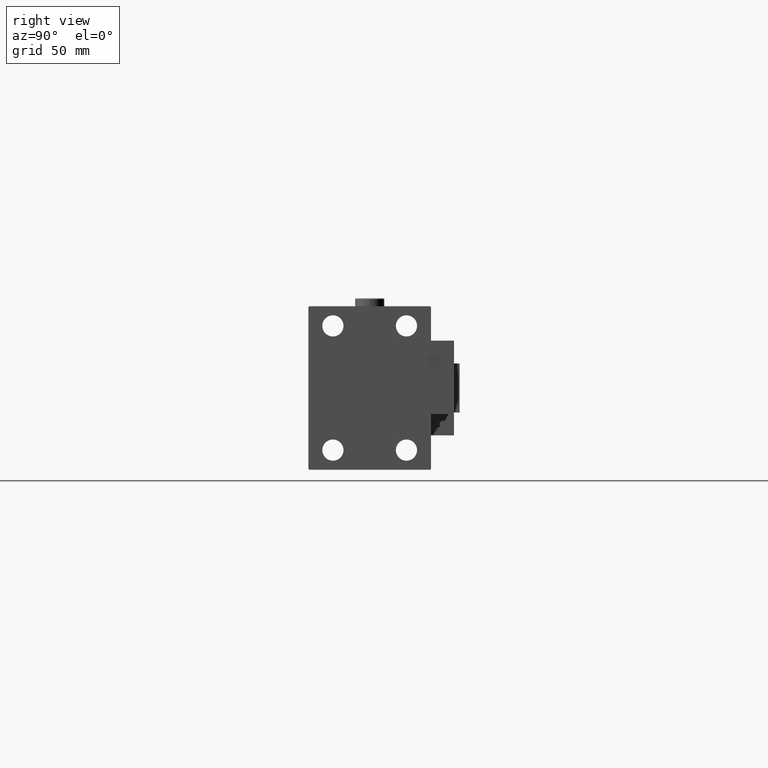
[diagram: clean part render]
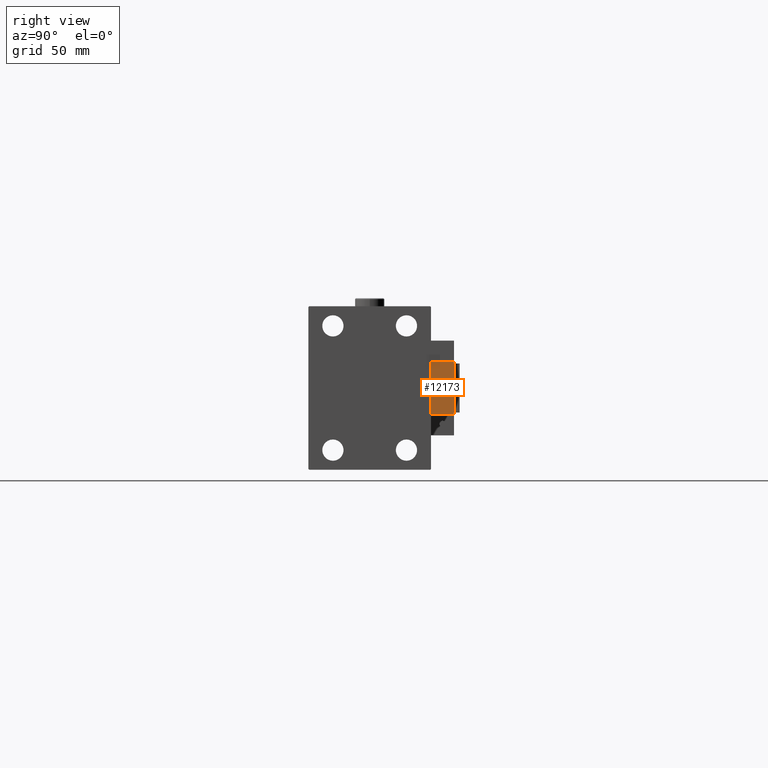
[diagram: same view with one face highlighted and labeled with its STEP entity id]
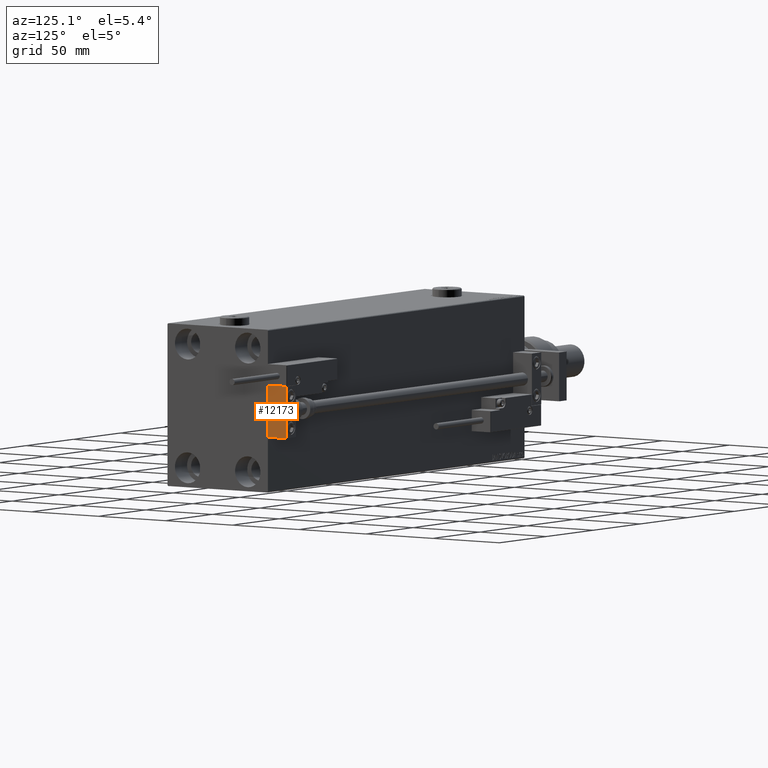
[diagram: same view with one face highlighted and labeled with its STEP entity id]
A machine part, right view. The second image highlights one B-rep face of the part: STEP entity #12173.
A second angle (auxiliary view) of the same face is appended — the face is thin or edge-on in the first view.
In plain terms, the highlighted planar face has unit normal (-1, 0, 0).
Its self-contained STEP definition (entity closure, byte-faithful):
#1646 = EDGE_CURVE ( 'NONE', #2069, #40427, #35022, .T. ) ;
#2069 = VERTEX_POINT ( 'NONE', #36869 ) ;
#2488 = DIRECTION ( 'NONE',  ( 0.000000000000000000, 0.000000000000000000, 1.000000000000000000 ) ) ;
#2517 = EDGE_CURVE ( 'NONE', #43426, #19495, #50619, .T. ) ;
#3165 = VECTOR ( 'NONE', #52374, 1000.000000000000000 ) ;
#5125 = AXIS2_PLACEMENT_3D ( 'NONE', #32236, #24239, #23689 ) ;
#6414 = DIRECTION ( 'NONE',  ( 0.000000000000000000, 0.000000000000000000, -1.000000000000000000 ) ) ;
#7139 = DIRECTION ( 'NONE',  ( 0.000000000000000000, 0.000000000000000000, -1.000000000000000000 ) ) ;
#7242 = ORIENTED_EDGE ( 'NONE', *, *, #19007, .T. ) ;
#7299 = EDGE_CURVE ( 'NONE', #18047, #39341, #40530, .T. ) ;
#7785 = EDGE_CURVE ( 'NONE', #2069, #18047, #51684, .T. ) ;
#8720 = CARTESIAN_POINT ( 'NONE',  ( 10.00000000000000000, 0.000000000000000000, 0.000000000000000000 ) ) ;
#11395 = CIRCLE ( 'NONE', #34278, 4.000000000000000000 ) ;
#11821 = PLANE ( 'NONE',  #5125 ) ;
#12173 = ADVANCED_FACE ( 'NONE', ( #27823, #20098 ), #11821, .F. ) ;
#15675 = EDGE_CURVE ( 'NONE', #40427, #39341, #20089, .T. ) ;
#17442 = VECTOR ( 'NONE', #7139, 1000.000000000000000 ) ;
#17935 = CARTESIAN_POINT ( 'NONE',  ( 10.00000000000000000, 7.000000000000000000, 15.99999999999999289 ) ) ;
#18047 = VERTEX_POINT ( 'NONE', #24044 ) ;
#19007 = EDGE_CURVE ( 'NONE', #19495, #43426, #11395, .T. ) ;
#19495 = VERTEX_POINT ( 'NONE', #46547 ) ;
#19923 = CARTESIAN_POINT ( 'NONE',  ( 10.00000000000000000, 7.000000000000000000, 15.99999999999999289 ) ) ;
#20089 = LINE ( 'NONE', #28081, #17442 ) ;
#20098 = FACE_OUTER_BOUND ( 'NONE', #45191, .T. ) ;
#21271 = ORIENTED_EDGE ( 'NONE', *, *, #7785, .F. ) ;
#21386 = DIRECTION ( 'NONE',  ( 0.000000000000000000, 0.000000000000000000, 1.000000000000000000 ) ) ;
#23689 = DIRECTION ( 'NONE',  ( -0.000000000000000000, 0.000000000000000000, 1.000000000000000000 ) ) ;
#24044 = CARTESIAN_POINT ( 'NONE',  ( 10.00000000000000000, 7.000000000000000000, -16.00000000000000711 ) ) ;
#24239 = DIRECTION ( 'NONE',  ( -1.000000000000000000, 0.000000000000000000, -0.000000000000000000 ) ) ;
#25157 = VECTOR ( 'NONE', #6414, 1000.000000000000000 ) ;
#25947 = VECTOR ( 'NONE', #50757, 1000.000000000000000 ) ;
#27823 = FACE_BOUND ( 'NONE', #33920, .T. ) ;
#28081 = CARTESIAN_POINT ( 'NONE',  ( 10.00000000000000000, -7.000000000000000000, 15.99999999999999289 ) ) ;
#31483 = CARTESIAN_POINT ( 'NONE',  ( 10.00000000000000000, -7.000000000000000000, 15.99999999999999289 ) ) ;
#31979 = CARTESIAN_POINT ( 'NONE',  ( 10.00000000000000000, 0.000000000000000000, 0.000000000000000000 ) ) ;
#32236 = CARTESIAN_POINT ( 'NONE',  ( 10.00000000000000000, 0.000000000000000000, 0.000000000000000000 ) ) ;
#33920 = EDGE_LOOP ( 'NONE', ( #7242, #37597 ) ) ;
#34070 = DIRECTION ( 'NONE',  ( -1.000000000000000000, 0.000000000000000000, 0.000000000000000000 ) ) ;
#34278 = AXIS2_PLACEMENT_3D ( 'NONE', #8720, #34070, #21386 ) ;
#35022 = LINE ( 'NONE', #17935, #25947 ) ;
#36869 = CARTESIAN_POINT ( 'NONE',  ( 10.00000000000000000, 7.000000000000000000, 15.99999999999999289 ) ) ;
#37393 = AXIS2_PLACEMENT_3D ( 'NONE', #31979, #40257, #2488 ) ;
#37597 = ORIENTED_EDGE ( 'NONE', *, *, #2517, .T. ) ;
#39341 = VERTEX_POINT ( 'NONE', #50514 ) ;
#40257 = DIRECTION ( 'NONE',  ( -1.000000000000000000, 0.000000000000000000, 0.000000000000000000 ) ) ;
#40427 = VERTEX_POINT ( 'NONE', #31483 ) ;
#40530 = LINE ( 'NONE', #44659, #3165 ) ;
#43289 = ORIENTED_EDGE ( 'NONE', *, *, #7299, .F. ) ;
#43426 = VERTEX_POINT ( 'NONE', #51984 ) ;
#44659 = CARTESIAN_POINT ( 'NONE',  ( 10.00000000000000000, 7.000000000000000000, -16.00000000000000711 ) ) ;
#45191 = EDGE_LOOP ( 'NONE', ( #51609, #43289, #21271, #53438 ) ) ;
#46547 = CARTESIAN_POINT ( 'NONE',  ( 10.00000000000000000, 0.000000000000000000, 4.000000000000000000 ) ) ;
#50514 = CARTESIAN_POINT ( 'NONE',  ( 10.00000000000000000, -7.000000000000000000, -16.00000000000000711 ) ) ;
#50619 = CIRCLE ( 'NONE', #37393, 4.000000000000000000 ) ;
#50757 = DIRECTION ( 'NONE',  ( 0.000000000000000000, -1.000000000000000000, 0.000000000000000000 ) ) ;
#51609 = ORIENTED_EDGE ( 'NONE', *, *, #15675, .T. ) ;
#51684 = LINE ( 'NONE', #19923, #25157 ) ;
#51984 = CARTESIAN_POINT ( 'NONE',  ( 10.00000000000000000, 4.898587196589412829E-16, -4.000000000000000000 ) ) ;
#52374 = DIRECTION ( 'NONE',  ( 0.000000000000000000, -1.000000000000000000, 0.000000000000000000 ) ) ;
#53438 = ORIENTED_EDGE ( 'NONE', *, *, #1646, .T. ) ;